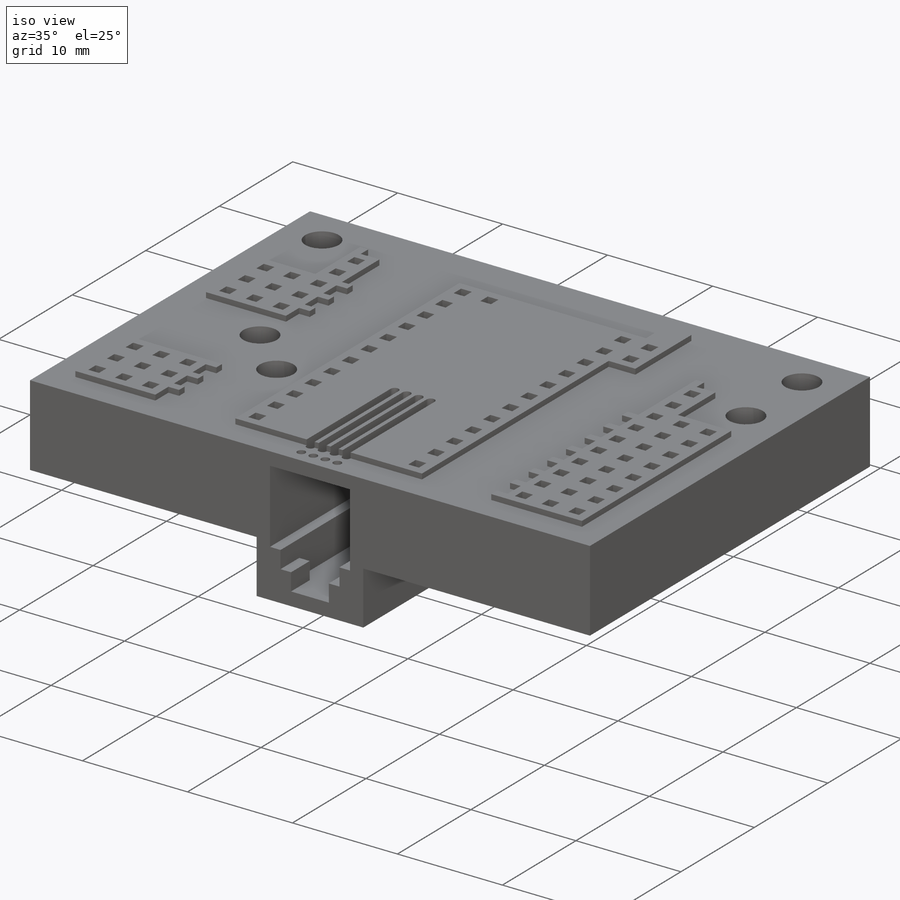
[diagram: iso view]
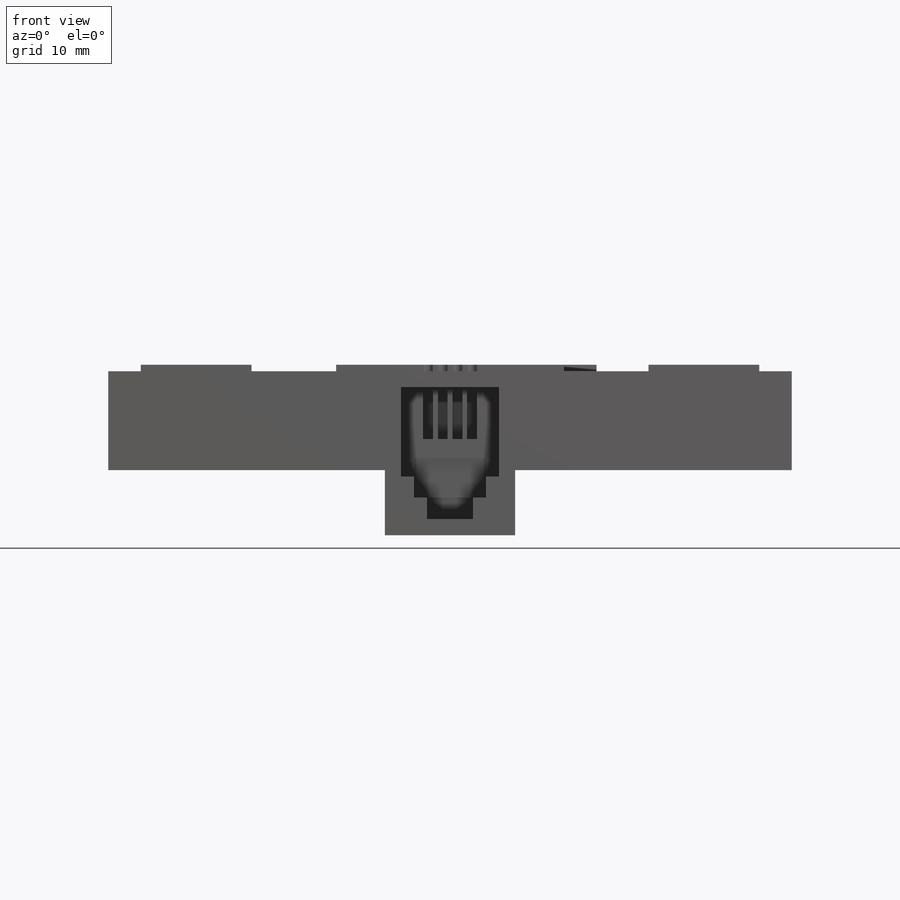
[diagram: front view]
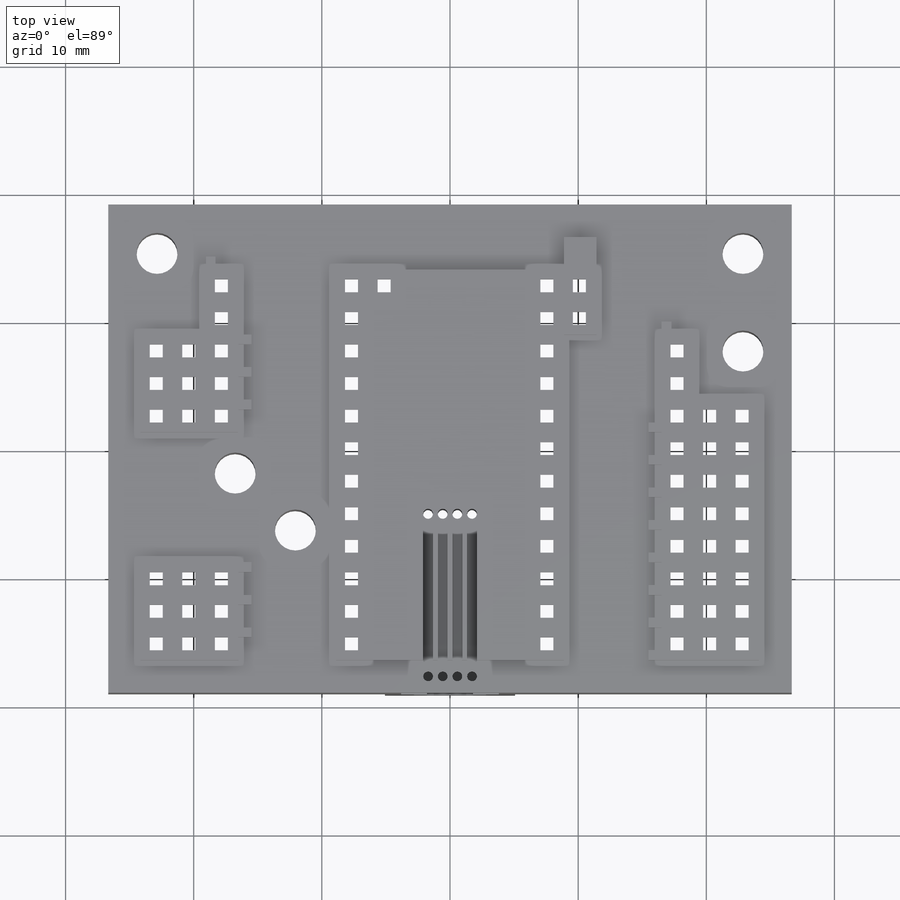
[diagram: top view]
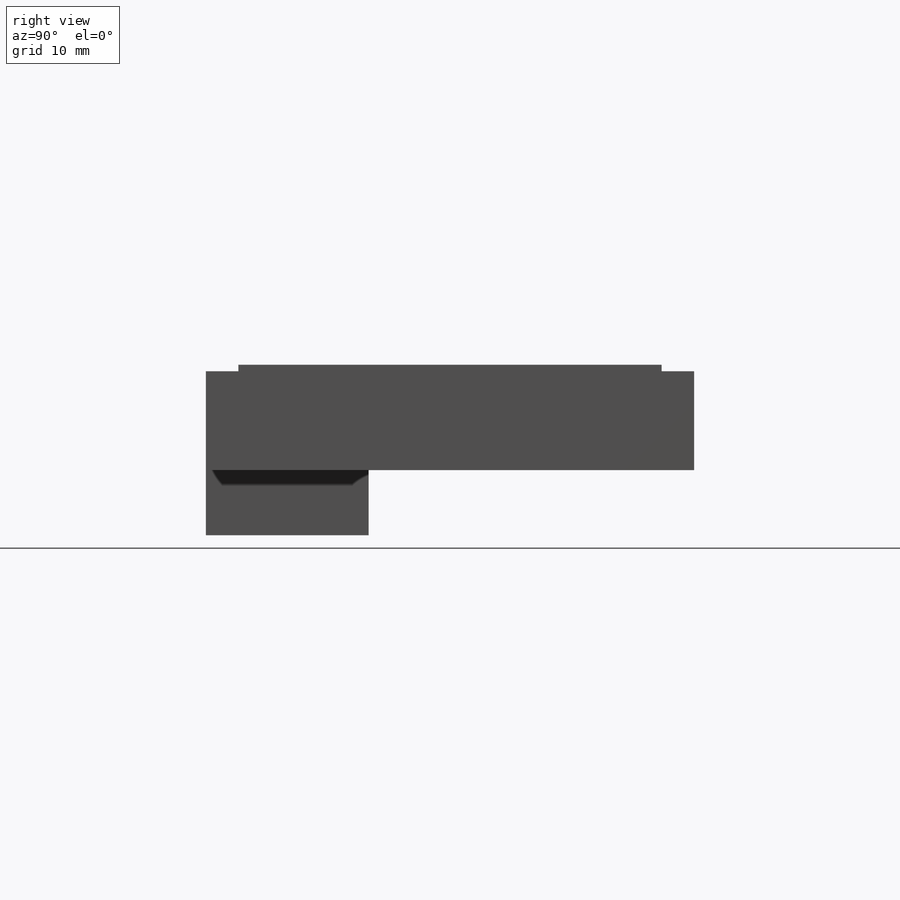
[diagram: right view]
SOLIDWORKS PART (.sldprt)
format: sldprt  version: not decoded by parser v0  size: 3,835,904 bytes
history: native  units: mm
features: sketch x22, cut_extrude x20, pattern_linear x13, extrude x2, material x1 (+11 scaffold rows collapsed)
feature tree (69):
  scaffold x11  (default folders/planes/origin — collapsed)
  material  "ABS PC"
  sketch  "Sketch1"  dims[c1.D3=3.2mm c1.D1=38.1mm c1.D2=53.34mm c1.D4=3.81mm c1.D5=3.81mm c1.D6=3.81mm c1.D7=3.81mm c1.D8=3.81mm c1.D9=11.43mm c1.D10=9.906mm c1.D11=14.605mm c1.D12=12.7mm c1.D13=17.145mm c2.D12=12.7mm c2.D13=17.145mm]
  extrude  "breadboard"  Depth=8.2296mm
  sketch  "Sketch7"  dims[c1.D1=12.7mm c1.D2=2.032mm c1.D3=2.8575mm c1.D4=5.08mm c2.D3=2.794mm c2.D4=6.35mm]
  cut_extrude  "Cut-Extrude5"  Depth=7.1628mm
  pattern_linear  "LPattern4"  Count1=10 Count2=2 Spacing1=2.54mm Spacing2=25.4mm
  sketch  "Sketch8"  dims[D1=12.7mm D2=2.032mm D3=2.794mm D4=2.54mm]
  cut_extrude  "Cut-Extrude6"  Depth=7.1628mm
  pattern_linear  "LPattern5"  Count1=2 Count2=2 Spacing1=12.7mm Spacing2=2.54mm
  sketch  "Sketch9"  dims[D1=20.32mm D2=1.905mm D3=2.8575mm D4=2.54mm]
  cut_extrude  "Cut-Extrude7"  Depth=7.1628mm
  pattern_linear  "LPattern6"  Count1=1 Count2=2 Spacing1=12.7mm Spacing2=2.54mm
  sketch  "Sketch10"  dims[D1=1.016mm D2=1.016mm D3=0.4445mm D4=0.762mm]
  cut_extrude  "Cut-Extrude8"  [1 undecoded]
  pattern_linear  "LPattern8"  Count1=12 Count2=19 Spacing1=2.54mm Spacing2=2.54mm
  sketch  "Sketch12"  dims[D1=12.7mm D2=2.032mm D3=7.62mm D4=7.874mm]
  cut_extrude  "Cut-Extrude9"  Depth=7.1628mm
  pattern_linear  "LPattern9"  Count1=2 Count2=1 Spacing1=2.54mm Spacing2=25.4mm
  sketch  "Sketch47"  dims[D1=10.16mm D2=12.7mm D3=21.59mm]
  extrude  "Boss-Extrude5"  Depth=5.08mm
  sketch  "Sketch54"  dims[c1.D1=7.62mm c1.D2=22.86mm c1.D3=10.287mm c1.D4=1.27mm c1.D5=5.6134mm c1.D6=1.0033mm c1.D7=3.6068mm c1.D8=1.0033mm c1.D9=1.651mm c1.D10=1.651mm c1.D11=1.651mm c1.D12=1.651mm c2.D3=6.985mm]
  cut_extrude  "Cut-Extrude33"  Depth=10.9982mm
  sketch  "Sketch57"  dims[D1=1.27mm D2=9.7282mm D3=5.6134mm]
  cut_extrude  "Cut-Extrude34"  Depth=1.651mm
  sketch  "Sketch59"  dims[c1.D1=4.064mm c1.D2=0.762mm c1.D3=1.8415mm c1.D4=2.032mm c2.D3=1.7145mm]
  cut_extrude  "Cut-Extrude35"  Depth=5.08mm
  pattern_linear  "LPattern25"  Count1=4 Count2=1 Spacing1=1.143mm Spacing2=2.54mm
  sketch  "Sketch62"  dims[c1.D1=0.762mm c1.D2=24.9555mm c1.D3=13.97mm c2.D2=24.9555mm]
  cut_extrude  "Cut-Extrude37"  Depth=7.62mm
  pattern_linear  "LPattern27"  Count1=4 Count2=2 Spacing1=1.143mm Spacing2=12.7mm
  sketch  "Sketch63"  dims[D1=0.381mm D2=12.7mm]
  cut_extrude  "Cut-Extrude38"  Depth=1.27mm
  pattern_linear  "LPattern28"  Count1=4 Count2=1 Spacing1=1.143mm Spacing2=2.54mm
  sketch  "Sketch66"  dims[D1=5.6134mm D2=3.175mm D3=1.5875mm]
  cut_extrude  "Cut-Extrude41"  Depth=0.508mm
  sketch  "Sketch68"  dims[c1.D1=5.08mm c1.D2=2.032mm c1.D3=0.9525mm c1.D4=0.635mm c2.D3=0.3175mm]
  cut_extrude  "Cut-Extrude43"  Depth=7.1628mm
  sketch  "Sketch69"  dims[c1.D6=4.572mm c1.D1=1.27mm c1.D2=1.27mm c2.D1=6.35mm c2.D2=3.175mm c2.D3=13.97mm c3.D1=1.27mm c3.D2=1.27mm c3.D4=6.35mm c3.D3=6.6675mm c3.D5=1.27mm c4.D1=1.27mm c4.D2=1.27mm c4.D3=3.81mm c4.D4=3.175mm c4.D5=3.175mm c5.D3=2.54mm c5.D6=5.08mm c5.D7=5.08mm c5.D8=2.54mm c5.D2=5.08mm c6.D3=2.54mm c6.D2=2.54mm c6.D4=5.08mm c6.D5=1.27mm c6.D6=3.175mm c6.D7=3.175mm]
  cut_extrude  "tracing"  Depth=1.5748mm
  sketch  "Sketch80"  dims[D1=5.08mm D2=2.54mm]
  cut_extrude  "Cut-Extrude52"  Depth=7.1628mm
  sketch  "Sketch77"  dims[D1=1.27mm D2=1.27mm]
  cut_extrude  "Cut-Extrude51"  Depth=1.5748mm
  pattern_linear  "LPattern32"  Count1=2 Count2=2 Spacing1=2.54mm Spacing2=26.67mm
  sketch  "Sketch81"  dims[D1=1.27mm]
  cut_extrude  "Cut-Extrude53"  Depth=1.5748mm
  pattern_linear  "LPattern33"  Count1=2 Count2=2 Spacing1=2.54mm Spacing2=21.59mm
  sketch  "Sketch85"  dims[c1.D1=5.08mm c1.D2=2.032mm c1.D3=2.032mm c2.D1=5.588mm c2.D4=0.508mm]
  cut_extrude  "Cut-Extrude57"  Depth=7.1628mm
  pattern_linear  "LPattern34"  Count1=4 Count2=1 Spacing1=2.54mm Spacing2=2.54mm
  sketch  "Sketch86"
  cut_extrude  "Cut-Extrude58"  Depth=1.5748mm
  pattern_linear  "LPattern35"  Count1=12 Count2=2 Spacing1=2.54mm Spacing2=11.43mm
  sketch  "Sketch88"  dims[D1=5.08mm]
  cut_extrude  "Cut-Extrude59"  Depth=7.1628mm
  pattern_linear  "LPattern36"  Count1=2 Count2=1 Spacing1=2.54mm Spacing2=2.54mm
  sketch  "Sketch89"  dims[c1.D1=7.62mm c1.D2=7.62mm c1.D3=2.54mm c1.D4=2.54mm c1.D5=1.016mm c1.D6=0.762mm c2.D1=7.62mm c2.D2=7.62mm c2.D7=0.762mm c2.D8=0.762mm c2.D9=1.778mm c2.D10=1.778mm c2.D11=10.16mm c2.D12=7.62mm c2.D13=5.08mm c2.D14=1.016mm c2.D15=0.762mm c2.D16=2.54mm c2.D17=0.762mm c2.D18=0.762mm c2.D19=0.762mm c2.D20=1.778mm c2.D21=1.778mm c2.D22=1.778mm c2.D23=8.89mm c2.D24=8.89mm c2.D25=2.54mm c2.D26=2.54mm c2.D27=2.54mm c2.D28=0.762mm c2.D29=1.016mm c2.D30=1.778mm c3.D27=2.54mm c3.D31=0.762mm c3.D32=1.016mm c3.D33=5.08mm c3.D34=7.62mm]
  cut_extrude  "Cut-Extrude60"  Depth=0.508mm
decode coverage: 55 of 57 modeling features carry decoded parameters
note: 1 parameter value undecoded
note: suppression state not decoded; provenance and decode notes live in map.json
